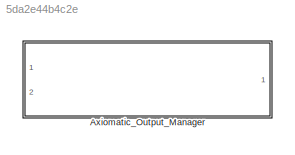
MODEL slx_5da2e44b4c2e
KIND library
CONFIG AbsTol = auto
CONFIG EnableMultiTasking = off
CONFIG FixedStep = auto
CONFIG MaxStep = auto
CONFIG MinStep = auto
CONFIG RelTol = 1e-3
CONFIG SampleTimeConstraint = Unconstrained
CONFIG Solver = VariableStepAuto
CONFIG SolverName = VariableStepAuto
CONFIG StartTime = 0.0
CONFIG StopTime = 10.0
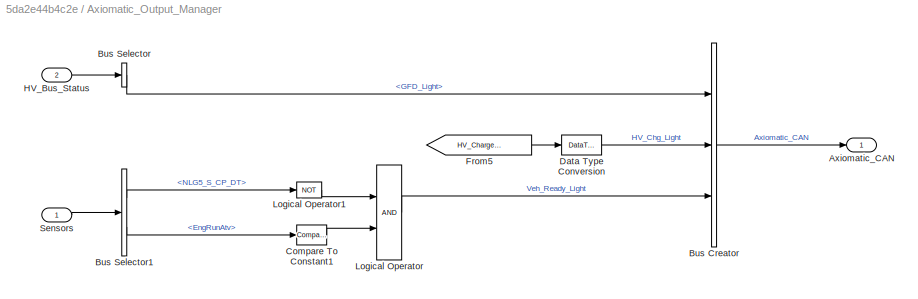
BLOCK [SubSystem] Axiomatic_Output_Manager
  Ports = [2, 1]
  RequestExecContextInheritance = off
  Variant = off
BLOCK [Outport] Axiomatic_Output_Manager/Axiomatic_CAN
  IconDisplay = Port number
BLOCK [BusCreator] Axiomatic_Output_Manager/Bus Creator
  DisplayOption = bar
  InheritFromInputs = on
  Inputs = 3
  Ports = [3, 1]
BLOCK [BusSelector] Axiomatic_Output_Manager/Bus Selector
  OutputAsBus = off
  OutputSignals = GFD_Light
  Ports = [1, 1]
BLOCK [BusSelector] Axiomatic_Output_Manager/Bus Selector1
  OutputAsBus = off
  OutputSignals = from_CAN.fromHV_CAN.from_OBC.NLG5_ST.NLG5_S_CP_DT,from_CAN.fromEBCAN.from_ECM.EngRunAtv
  Ports = [1, 2]
BLOCK [Reference] Axiomatic_Output_Manager/Compare To Constant1  REF=simulink/Logic and Bit
Operations/Compare
To Constant
  Ports = [1, 1]
  SourceBlock = simulink/Logic and Bit\nOperations/Compare\nTo Constant
  SourceProductBaseCode = SL
  SourceProductName = Simulink
  SourceType = Compare To Constant
BLOCK [DataTypeConversion] Axiomatic_Output_Manager/Data Type Conversion
  RndMeth = Floor
  SaturateOnIntegerOverflow = off
BLOCK [From] Axiomatic_Output_Manager/From5
  GotoTag = HV_Charge_Indicator
  TagVisibility = global
BLOCK [Inport] Axiomatic_Output_Manager/HV_Bus_Status
  IconDisplay = Port number
  Port = 2
BLOCK [Logic] Axiomatic_Output_Manager/Logical Operator
  AllPortsSameDT = off
  OutDataTypeStr = boolean
  Ports = [2, 1]
BLOCK [Logic] Axiomatic_Output_Manager/Logical Operator1
  AllPortsSameDT = off
  Operator = NOT
  OutDataTypeStr = boolean
  Ports = [1, 1]
BLOCK [Inport] Axiomatic_Output_Manager/Sensors
  IconDisplay = Port number
LINE Axiomatic_Output_Manager/Bus Creator:1 -> Axiomatic_Output_Manager/Axiomatic_CAN:1
LINE Axiomatic_Output_Manager/Bus Selector1:1 -> Axiomatic_Output_Manager/Logical Operator1:1
LINE Axiomatic_Output_Manager/Bus Selector1:2 -> Axiomatic_Output_Manager/Compare To Constant1:1
LINE Axiomatic_Output_Manager/Bus Selector:1 -> Axiomatic_Output_Manager/Bus Creator:1
LINE Axiomatic_Output_Manager/Compare To Constant1:1 -> Axiomatic_Output_Manager/Logical Operator:2
LINE Axiomatic_Output_Manager/Data Type Conversion:1 -> Axiomatic_Output_Manager/Bus Creator:2
LINE Axiomatic_Output_Manager/From5:1 -> Axiomatic_Output_Manager/Data Type Conversion:1
LINE Axiomatic_Output_Manager/HV_Bus_Status:1 -> Axiomatic_Output_Manager/Bus Selector:1
LINE Axiomatic_Output_Manager/Logical Operator1:1 -> Axiomatic_Output_Manager/Logical Operator:1
LINE Axiomatic_Output_Manager/Logical Operator:1 -> Axiomatic_Output_Manager/Bus Creator:3
LINE Axiomatic_Output_Manager/Sensors:1 -> Axiomatic_Output_Manager/Bus Selector1:1
